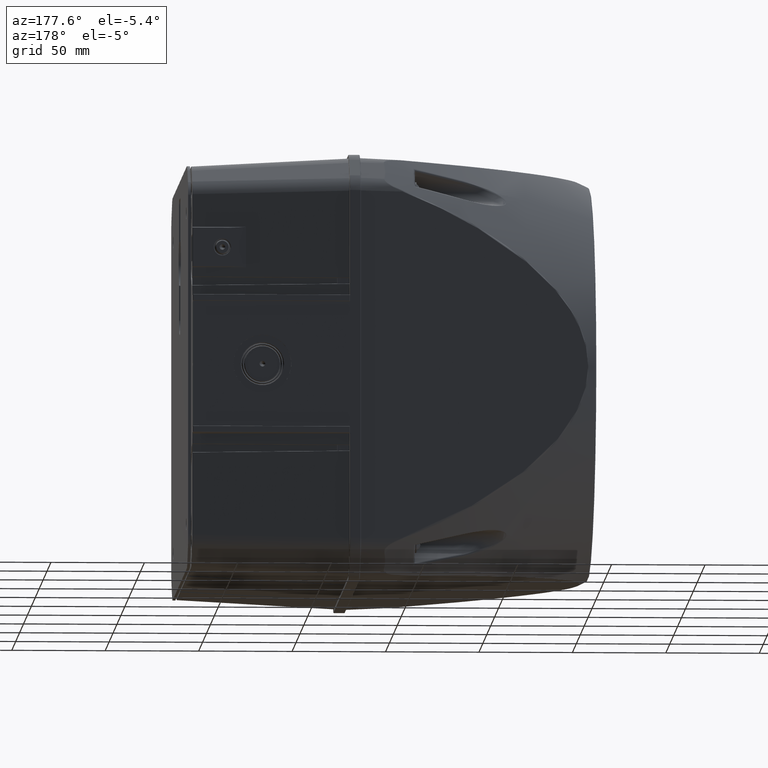
[diagram: clean part render]
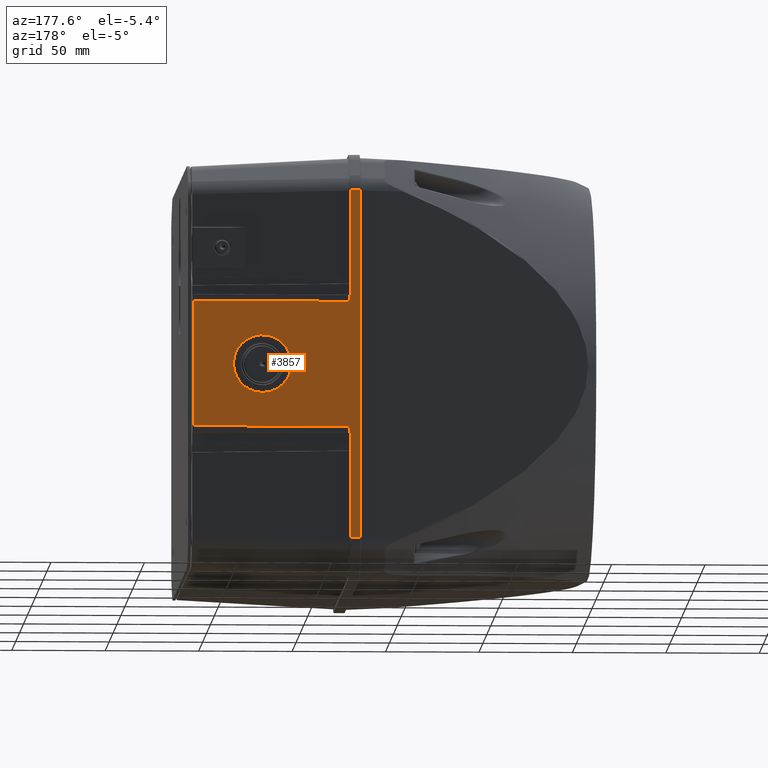
[diagram: same view with one face highlighted and labeled with its STEP entity id]
A machine part, auxiliary view. The second image highlights one B-rep face of the part: STEP entity #3857.
In plain terms, the highlighted planar face has unit normal (0, 1, 0).
Its self-contained STEP definition (entity closure, byte-faithful):
#1660=FACE_BOUND('',#7201,.T.);
#1661=FACE_BOUND('',#7202,.T.);
#2099=CIRCLE('',#23732,0.2);
#2100=CIRCLE('',#23733,0.2);
#2101=CIRCLE('',#23734,0.2);
#2102=CIRCLE('',#23735,0.2);
#2103=CIRCLE('',#23736,15.5);
#3344=B_SPLINE_CURVE_WITH_KNOTS('',3,(#42060,#42061,#42062,#42063,#42064,
#42065),.UNSPECIFIED.,.F.,.F.,(4,2,4),(0.,0.5,1.),.UNSPECIFIED.);
#3345=B_SPLINE_CURVE_WITH_KNOTS('',3,(#42077,#42078,#42079,#42080,#42081,
#42082),.UNSPECIFIED.,.F.,.F.,(4,2,4),(0.,0.5,1.),.UNSPECIFIED.);
#3857=ADVANCED_FACE('',(#1660,#1661),#5146,.T.);
#5146=PLANE('',#23737);
#7201=EDGE_LOOP('',(#10422,#10423,#10424,#10425,#10426,#10427,#10428,#10429,
#10430,#10431,#10432,#10433,#10434,#10435,#10436,#10437,#10438,#10439));
#7202=EDGE_LOOP('',(#10440));
#10422=ORIENTED_EDGE('',*,*,#18293,.T.);
#10423=ORIENTED_EDGE('',*,*,#18294,.T.);
#10424=ORIENTED_EDGE('',*,*,#18295,.T.);
#10425=ORIENTED_EDGE('',*,*,#18296,.T.);
#10426=ORIENTED_EDGE('',*,*,#18297,.T.);
#10427=ORIENTED_EDGE('',*,*,#18298,.T.);
#10428=ORIENTED_EDGE('',*,*,#18299,.T.);
#10429=ORIENTED_EDGE('',*,*,#18300,.T.);
#10430=ORIENTED_EDGE('',*,*,#18301,.T.);
#10431=ORIENTED_EDGE('',*,*,#18302,.T.);
#10432=ORIENTED_EDGE('',*,*,#18303,.T.);
#10433=ORIENTED_EDGE('',*,*,#18304,.F.);
#10434=ORIENTED_EDGE('',*,*,#18305,.T.);
#10435=ORIENTED_EDGE('',*,*,#18306,.T.);
#10436=ORIENTED_EDGE('',*,*,#18307,.T.);
#10437=ORIENTED_EDGE('',*,*,#18308,.T.);
#10438=ORIENTED_EDGE('',*,*,#18309,.F.);
#10439=ORIENTED_EDGE('',*,*,#18310,.T.);
#10440=ORIENTED_EDGE('',*,*,#18311,.T.);
#16030=VERTEX_POINT('',#42046);
#16031=VERTEX_POINT('',#42047);
#16032=VERTEX_POINT('',#42049);
#16033=VERTEX_POINT('',#42051);
#16034=VERTEX_POINT('',#42053);
#16035=VERTEX_POINT('',#42055);
#16036=VERTEX_POINT('',#42057);
#16037=VERTEX_POINT('',#42059);
#16038=VERTEX_POINT('',#42066);
#16039=VERTEX_POINT('',#42068);
#16040=VERTEX_POINT('',#42070);
#16041=VERTEX_POINT('',#42072);
#16042=VERTEX_POINT('',#42074);
#16043=VERTEX_POINT('',#42076);
#16044=VERTEX_POINT('',#42083);
#16045=VERTEX_POINT('',#42085);
#16046=VERTEX_POINT('',#42087);
#16047=VERTEX_POINT('',#42089);
#16048=VERTEX_POINT('',#42092);
#18293=EDGE_CURVE('',#16030,#16031,#20898,.T.);
#18294=EDGE_CURVE('',#16031,#16032,#20899,.T.);
#18295=EDGE_CURVE('',#16032,#16033,#20900,.T.);
#18296=EDGE_CURVE('',#16033,#16034,#2099,.T.);
#18297=EDGE_CURVE('',#16034,#16035,#20901,.T.);
#18298=EDGE_CURVE('',#16035,#16036,#2100,.T.);
#18299=EDGE_CURVE('',#16036,#16037,#20902,.T.);
#18300=EDGE_CURVE('',#16037,#16038,#3344,.T.);
#18301=EDGE_CURVE('',#16038,#16039,#20903,.T.);
#18302=EDGE_CURVE('',#16039,#16040,#20904,.T.);
#18303=EDGE_CURVE('',#16040,#16041,#20905,.T.);
#18304=EDGE_CURVE('',#16042,#16041,#20906,.T.);
#18305=EDGE_CURVE('',#16042,#16043,#20907,.T.);
#18306=EDGE_CURVE('',#16043,#16044,#3345,.T.);
#18307=EDGE_CURVE('',#16044,#16045,#20908,.T.);
#18308=EDGE_CURVE('',#16045,#16046,#2101,.T.);
#18309=EDGE_CURVE('',#16047,#16046,#20909,.T.);
#18310=EDGE_CURVE('',#16047,#16030,#2102,.T.);
#18311=EDGE_CURVE('',#16048,#16048,#2103,.T.);
#20898=LINE('',#42045,#22265);
#20899=LINE('',#42048,#22266);
#20900=LINE('',#42050,#22267);
#20901=LINE('',#42054,#22268);
#20902=LINE('',#42058,#22269);
#20903=LINE('',#42067,#22270);
#20904=LINE('',#42069,#22271);
#20905=LINE('',#42071,#22272);
#20906=LINE('',#42073,#22273);
#20907=LINE('',#42075,#22274);
#20908=LINE('',#42084,#22275);
#20909=LINE('',#42088,#22276);
#22265=VECTOR('',#27879,1.);
#22266=VECTOR('',#27880,1.);
#22267=VECTOR('',#27881,1.);
#22268=VECTOR('',#27884,1.);
#22269=VECTOR('',#27887,1.);
#22270=VECTOR('',#27888,1.);
#22271=VECTOR('',#27889,1.);
#22272=VECTOR('',#27890,1.);
#22273=VECTOR('',#27891,1.);
#22274=VECTOR('',#27892,1.);
#22275=VECTOR('',#27893,1.);
#22276=VECTOR('',#27896,1.);
#23732=AXIS2_PLACEMENT_3D('',#42052,#27882,#27883);
#23733=AXIS2_PLACEMENT_3D('',#42056,#27885,#27886);
#23734=AXIS2_PLACEMENT_3D('',#42086,#27894,#27895);
#23735=AXIS2_PLACEMENT_3D('',#42090,#27897,#27898);
#23736=AXIS2_PLACEMENT_3D('',#42091,#27899,#27900);
#23737=AXIS2_PLACEMENT_3D('',#42093,#27901,#27902);
#27879=DIRECTION('',(0.,2.47817639425258E-016,-1.));
#27880=DIRECTION('',(0.,1.,0.));
#27881=DIRECTION('',(0.,-4.13029399042097E-016,1.));
#27882=DIRECTION('',(-1.,0.,0.));
#27883=DIRECTION('',(0.,0.,-1.00000000000003));
#27884=DIRECTION('',(-3.71606187351993E-016,1.,0.));
#27885=DIRECTION('',(-1.,0.,0.));
#27886=DIRECTION('',(0.,0.,-1.00000000000003));
#27887=DIRECTION('',(0.,-4.13029399042097E-016,1.));
#27888=DIRECTION('',(0.,1.,0.));
#27889=DIRECTION('',(0.,0.,1.));
#27890=DIRECTION('',(0.,-1.,0.));
#27891=DIRECTION('',(0.,0.,1.));
#27892=DIRECTION('',(0.,1.,0.));
#27893=DIRECTION('',(0.,2.47817639425258E-016,-1.));
#27894=DIRECTION('',(-1.,0.,0.));
#27895=DIRECTION('',(0.,0.,-1.00000000000003));
#27896=DIRECTION('',(0.,-1.,-2.47817639425258E-016));
#27897=DIRECTION('',(-1.,0.,0.));
#27898=DIRECTION('',(0.,0.,-1.00000000000003));
#27899=DIRECTION('',(-1.,0.,0.));
#27900=DIRECTION('',(0.,0.,-1.));
#27901=DIRECTION('',(1.,0.,0.));
#27902=DIRECTION('',(0.,0.,-1.));
#42045=CARTESIAN_POINT('',(114.2,-33.65,-128.348824256376));
#42046=CARTESIAN_POINT('',(114.2,-33.65,-134.548824256376));
#42047=CARTESIAN_POINT('',(114.2,-33.65,-218.148824256376));
#42048=CARTESIAN_POINT('',(114.2,33.5,-218.148824256376));
#42049=CARTESIAN_POINT('',(114.2,33.65,-218.148824256376));
#42050=CARTESIAN_POINT('',(114.2,33.65,-128.348824256376));
#42051=CARTESIAN_POINT('',(114.2,33.65,-134.548824256376));
#42052=CARTESIAN_POINT('',(114.2,33.85,-134.548824256376));
#42053=CARTESIAN_POINT('',(114.2,33.85,-134.348824256376));
#42054=CARTESIAN_POINT('',(114.2,102.486276540021,-134.348824256376));
#42055=CARTESIAN_POINT('',(114.2,36.8,-134.348824256376));
#42056=CARTESIAN_POINT('',(114.2,36.8,-134.548824256376));
#42057=CARTESIAN_POINT('',(114.2,37.,-134.548824256376));
#42058=CARTESIAN_POINT('',(114.2,37.,-128.348824256376));
#42059=CARTESIAN_POINT('',(114.2,37.,-134.531836958268));
#42060=CARTESIAN_POINT('',(114.2,37.,-134.531836958268));
#42061=CARTESIAN_POINT('',(114.2,37.,-134.445173051247));
#42062=CARTESIAN_POINT('',(114.2,37.0334938031633,-134.363149247047));
#42063=CARTESIAN_POINT('',(114.2,37.1281338702281,-134.220875185499));
#42064=CARTESIAN_POINT('',(114.2,37.1896757556309,-134.159149707238));
#42065=CARTESIAN_POINT('',(114.2,37.25,-134.098824256376));
#42066=CARTESIAN_POINT('',(114.2,37.25,-134.098824256376));
#42067=CARTESIAN_POINT('',(114.2,93.3635410291831,-134.098824256376));
#42068=CARTESIAN_POINT('',(114.2,93.3635410291831,-134.098824256376));
#42069=CARTESIAN_POINT('',(114.2,93.3635410291831,-134.348824256376));
#42070=CARTESIAN_POINT('',(114.2,93.3635410291831,-128.648824256376));
#42071=CARTESIAN_POINT('',(114.2,-93.3635410291832,-128.648824256376));
#42072=CARTESIAN_POINT('',(114.2,-93.3635410291831,-128.648824256376));
#42073=CARTESIAN_POINT('',(114.2,-93.3635410291831,-134.348824256376));
#42074=CARTESIAN_POINT('',(114.2,-93.3635410291831,-134.098824256376));
#42075=CARTESIAN_POINT('',(114.2,-37.0000000000001,-134.098824256376));
#42076=CARTESIAN_POINT('',(114.2,-37.2500000000001,-134.098824256376));
#42077=CARTESIAN_POINT('',(114.2,-37.2500000000001,-134.098824256376));
#42078=CARTESIAN_POINT('',(114.2,-37.189675755631,-134.159149707238));
#42079=CARTESIAN_POINT('',(114.2,-37.1281338702281,-134.220875185499));
#42080=CARTESIAN_POINT('',(114.2,-37.0334938031634,-134.363149247047));
#42081=CARTESIAN_POINT('',(114.2,-37.,-134.445173051247));
#42082=CARTESIAN_POINT('',(114.2,-37.0000000000001,-134.531836958268));
#42083=CARTESIAN_POINT('',(114.2,-37.0000000000001,-134.531836958268));
#42084=CARTESIAN_POINT('',(114.2,-37.0000000000001,-128.348824256376));
#42085=CARTESIAN_POINT('',(114.2,-37.0000000000001,-134.548824256376));
#42086=CARTESIAN_POINT('',(114.2,-36.8,-134.548824256376));
#42087=CARTESIAN_POINT('',(114.2,-36.8,-134.348824256376));
#42088=CARTESIAN_POINT('',(114.2,33.5,-134.348824256376));
#42089=CARTESIAN_POINT('',(114.2,-33.85,-134.348824256376));
#42090=CARTESIAN_POINT('',(114.2,-33.85,-134.548824256376));
#42091=CARTESIAN_POINT('',(114.2,-2.77555756156289E-014,-181.098824256376));
#42092=CARTESIAN_POINT('',(114.2,-2.77555756156289E-014,-196.598824256376));
#42093=CARTESIAN_POINT('',(114.2,33.5,-128.348824256376));